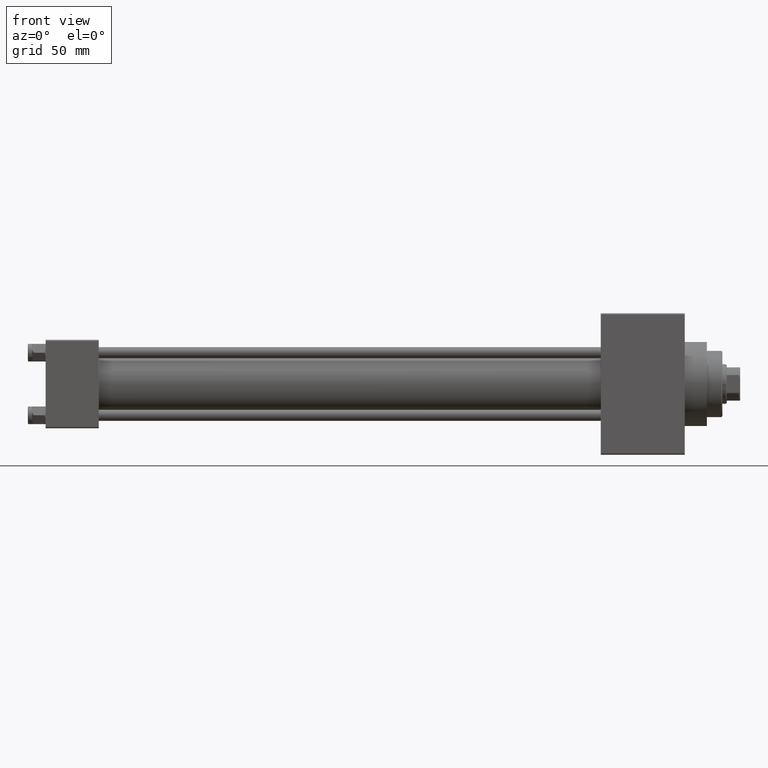
[diagram: clean part render]
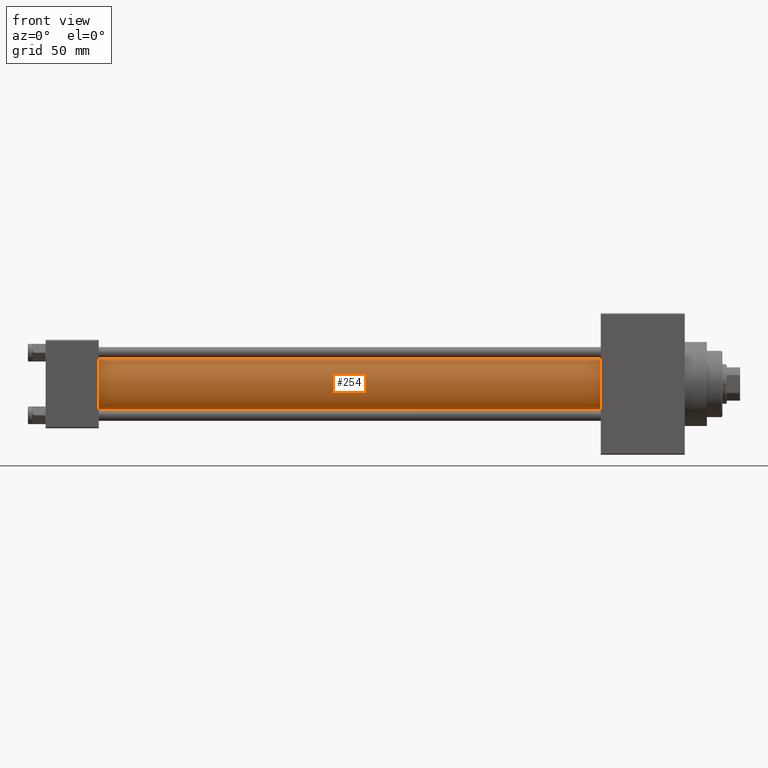
[diagram: same view with one face highlighted and labeled with its STEP entity id]
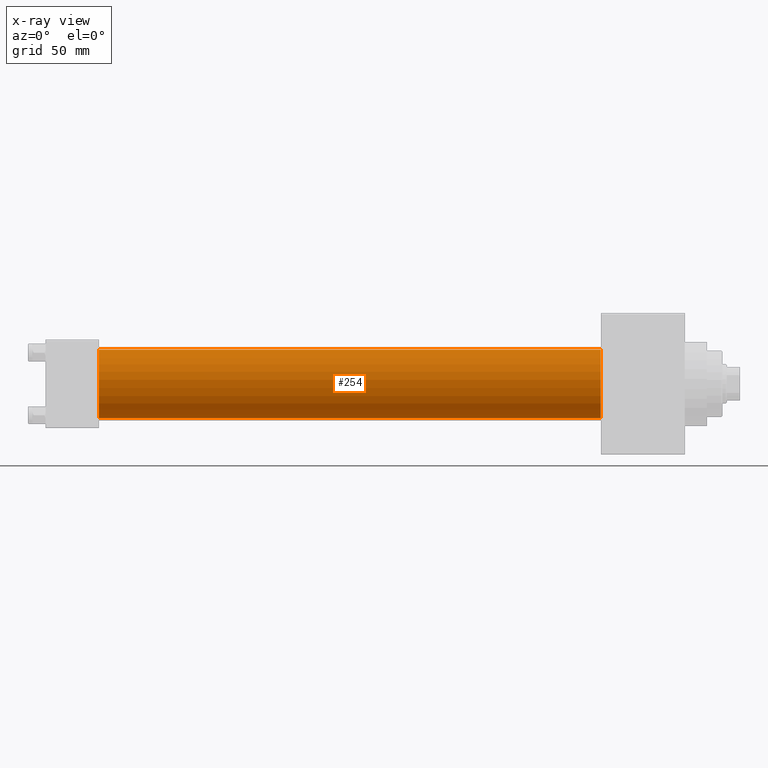
[diagram: x-ray of the same camera — body ghosted, the highlighted face saturated]
A machine part, front view. The second image highlights one B-rep face of the part: STEP entity #254.
The next image is the same camera in x-ray: the body ghosted, the highlighted face saturated — about 0% of this face is hidden behind the body in this view.
In plain terms, the highlighted cylindrical surface (edge-blend (fillet) strip) has radius 15.5 mm, axis along (-1, -0, -0).
Its self-contained STEP definition (entity closure, byte-faithful):
#254 = ADVANCED_FACE ( 'NONE', ( #28699 ), #46814, .T. ) ;
#1493 = AXIS2_PLACEMENT_3D ( 'NONE', #39892, #35852, #46582 ) ;
#1615 = CIRCLE ( 'NONE', #30515, 15.50000000000000000 ) ;
#6812 = VERTEX_POINT ( 'NONE', #28736 ) ;
#7008 = VECTOR ( 'NONE', #19080, 1000.000000000000000 ) ;
#7926 = ORIENTED_EDGE ( 'NONE', *, *, #40465, .T. ) ;
#8744 = AXIS2_PLACEMENT_3D ( 'NONE', #17793, #31839, #10177 ) ;
#9881 = ORIENTED_EDGE ( 'NONE', *, *, #17272, .F. ) ;
#10177 = DIRECTION ( 'NONE',  ( 0.000000000000000000, 0.000000000000000000, -1.000000000000000000 ) ) ;
#10635 = CARTESIAN_POINT ( 'NONE',  ( 23.99999999999999289, -2.602085213965210642E-15, 0.000000000000000000 ) ) ;
#10697 = DIRECTION ( 'NONE',  ( -1.000000000000000000, -0.000000000000000000, -0.000000000000000000 ) ) ;
#16056 = EDGE_LOOP ( 'NONE', ( #22280, #9881, #7926, #19851 ) ) ;
#17272 = EDGE_CURVE ( 'NONE', #31736, #6812, #36895, .T. ) ;
#17547 = DIRECTION ( 'NONE',  ( 0.000000000000000000, 0.000000000000000000, 1.000000000000000000 ) ) ;
#17793 = CARTESIAN_POINT ( 'NONE',  ( 251.0000000000000000, -2.602085213965210642E-15, 0.000000000000000000 ) ) ;
#19080 = DIRECTION ( 'NONE',  ( -1.000000000000000000, -0.000000000000000000, -0.000000000000000000 ) ) ;
#19498 = VERTEX_POINT ( 'NONE', #26709 ) ;
#19851 = ORIENTED_EDGE ( 'NONE', *, *, #39694, .T. ) ;
#21171 = CARTESIAN_POINT ( 'NONE',  ( 23.99999999999999289, -2.602085213965210642E-15, 15.50000000000000000 ) ) ;
#22280 = ORIENTED_EDGE ( 'NONE', *, *, #27961, .F. ) ;
#25187 = VERTEX_POINT ( 'NONE', #21171 ) ;
#25216 = LINE ( 'NONE', #39980, #28721 ) ;
#26453 = LINE ( 'NONE', #36936, #7008 ) ;
#26709 = CARTESIAN_POINT ( 'NONE',  ( 23.99999999999999289, -7.038826752868134786E-16, -15.50000000000000000 ) ) ;
#27961 = EDGE_CURVE ( 'NONE', #6812, #19498, #25216, .T. ) ;
#28699 = FACE_OUTER_BOUND ( 'NONE', #16056, .T. ) ;
#28721 = VECTOR ( 'NONE', #10697, 1000.000000000000000 ) ;
#28736 = CARTESIAN_POINT ( 'NONE',  ( 251.0000000000000000, -7.038826752868134786E-16, -15.50000000000000000 ) ) ;
#29134 = CARTESIAN_POINT ( 'NONE',  ( 251.0000000000000000, -2.602085213965210642E-15, 15.50000000000000000 ) ) ;
#30515 = AXIS2_PLACEMENT_3D ( 'NONE', #10635, #39683, #17547 ) ;
#31736 = VERTEX_POINT ( 'NONE', #29134 ) ;
#31839 = DIRECTION ( 'NONE',  ( 1.000000000000000000, 0.000000000000000000, 0.000000000000000000 ) ) ;
#35852 = DIRECTION ( 'NONE',  ( -1.000000000000000000, -0.000000000000000000, -0.000000000000000000 ) ) ;
#36895 = CIRCLE ( 'NONE', #8744, 15.50000000000000000 ) ;
#36936 = CARTESIAN_POINT ( 'NONE',  ( 251.0000000000000000, -2.602085213965210642E-15, 15.50000000000000000 ) ) ;
#39683 = DIRECTION ( 'NONE',  ( 1.000000000000000000, 0.000000000000000000, 0.000000000000000000 ) ) ;
#39694 = EDGE_CURVE ( 'NONE', #25187, #19498, #1615, .T. ) ;
#39892 = CARTESIAN_POINT ( 'NONE',  ( 251.0000000000000000, -2.602085213965210642E-15, 0.000000000000000000 ) ) ;
#39980 = CARTESIAN_POINT ( 'NONE',  ( 251.0000000000000000, -7.038826752868134786E-16, -15.50000000000000000 ) ) ;
#40465 = EDGE_CURVE ( 'NONE', #31736, #25187, #26453, .T. ) ;
#46582 = DIRECTION ( 'NONE',  ( 0.000000000000000000, 0.000000000000000000, 1.000000000000000000 ) ) ;
#46814 = CYLINDRICAL_SURFACE ( 'NONE', #1493, 15.50000000000000000 ) ;